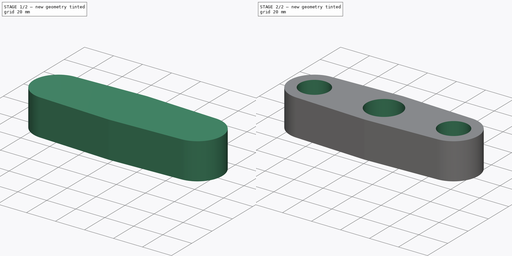
[diagram: build sequence overview — one tinted view per stage of 2, left to right]
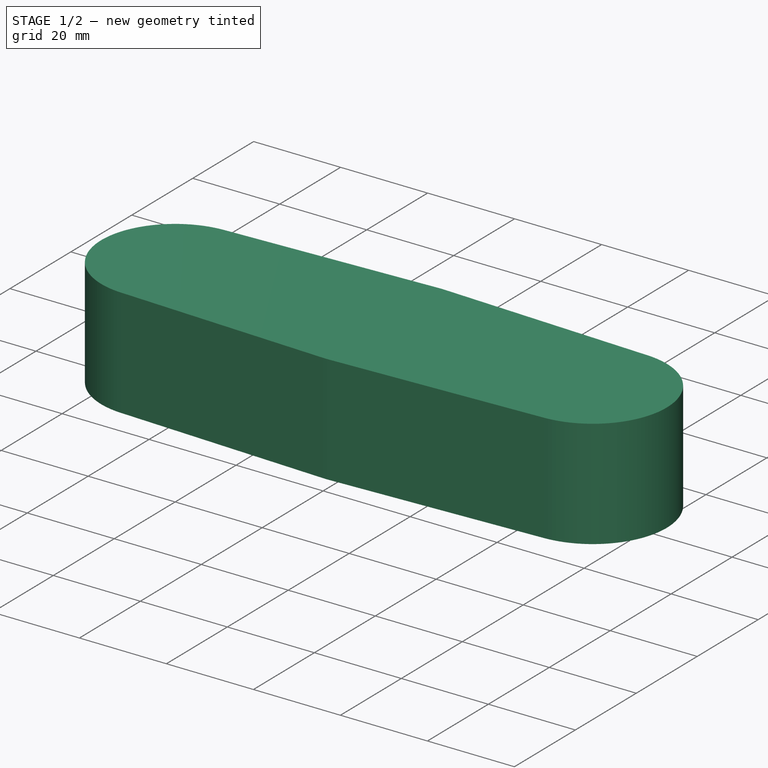
[diagram: stage 1 of 2 — iso view after this stage's code; geometry added in this stage tinted green]
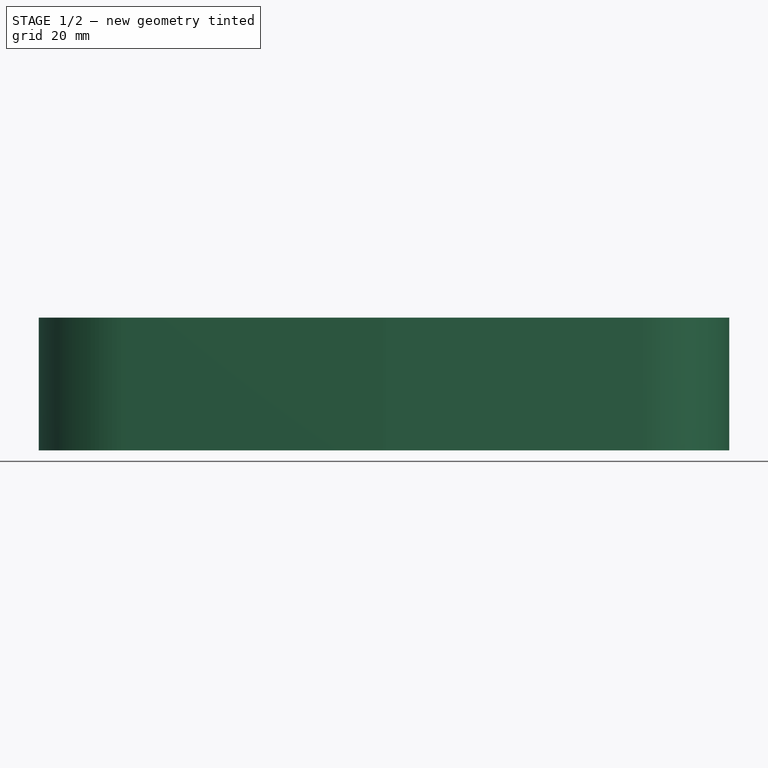
[diagram: stage 1 of 2 — front view after this stage's code; geometry added in this stage tinted green]
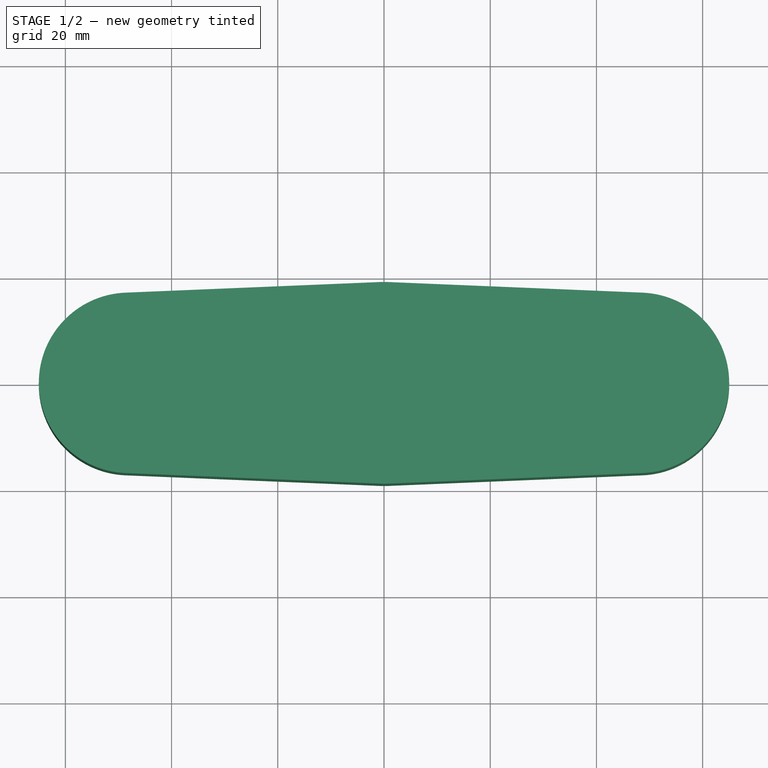
[diagram: stage 1 of 2 — top view after this stage's code; geometry added in this stage tinted green]
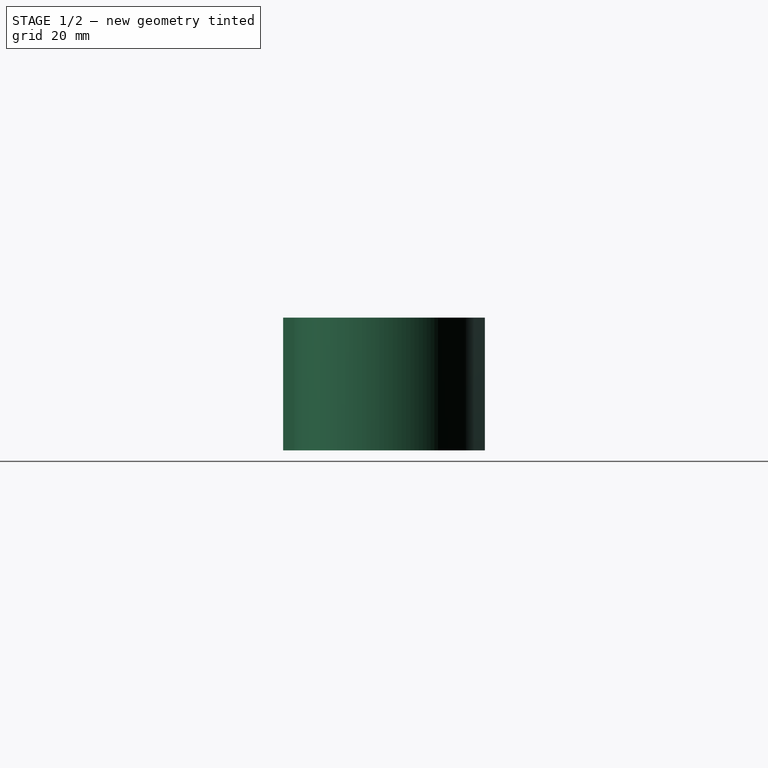
[diagram: stage 1 of 2 — right view after this stage's code; geometry added in this stage tinted green]
FCSTD DOCUMENT  (FreeCAD 0.18R4 (GitTag))
Label: part 4
License: All rights reserved
LicenseURL: http://en.wikipedia.org/wiki/All_rights_reserved
objects: PartDesign::Body×2, Sketcher::SketchObject×2, PartDesign::Pad×1, PartDesign::Pocket×1
note: 8 computed .brp shape members not serialized (recipe doc carries the construction recipe); baked Part::Feature solids carry a one-line shape summary decoded from their .brp

FEATURE [PartDesign::Body] Body
  Origin = -> Origin
FEATURE [Sketcher::SketchObject] Sketch
  MapMode = 5
  Support = -> [XY_Plane001]
  sketch-geometry (8):
    g0: ArcOfCircle CenterX=-48 CenterY=0 CenterZ=0 NormalX=0 NormalY=0 NormalZ=1 AngleXU=0 Radius=17 StartAngle=1.61247 EndAngle=4.67071
    g1: ArcOfCircle CenterX=48 CenterY=0 CenterZ=0 NormalX=0 NormalY=0 NormalZ=1 AngleXU=0 Radius=17 StartAngle=4.75407 EndAngle=7.8123
    g2: ArcOfCircle CenterX=0 CenterY=0 CenterZ=0 NormalX=0 NormalY=0 NormalZ=1 AngleXU=0 Radius=19 StartAngle=1.52912 EndAngle=1.61248
    g3: ArcOfCircle CenterX=0 CenterY=0 CenterZ=0 NormalX=0 NormalY=0 NormalZ=1 AngleXU=0 Radius=19 StartAngle=4.67071 EndAngle=4.75407
    g4: LineSegment StartX=-48.7083 StartY=16.9852 StartZ=0 EndX=-0.791667 EndY=18.9835 EndZ=0
    g5: LineSegment StartX=-48.7083 StartY=-16.9852 StartZ=0 EndX=-0.791666 EndY=-18.9835 EndZ=0
    g6: LineSegment StartX=0.791666 StartY=18.9835 StartZ=0 EndX=48.7083 EndY=16.9852 EndZ=0
    g7: LineSegment StartX=0.791666 StartY=-18.9835 StartZ=0 EndX=48.7083 EndY=-16.9852 EndZ=0
  constraints (26):
    c: DistanceY(g-1,g1) = 0
    c: DistanceY(g-1,g0) = 0
    c: DistanceX(g0,g-1) = 48
    c: DistanceX(g-1,g1) = 48
    c: Radius(g1) = 17
    c: Radius(g0) = 17
    c: Coincident(g2,g-1)
    c: Coincident(g3,g2)
    c: Radius(g2) = 19
    c: Radius(g3) = 19
    c: Coincident(g2,g4)
    c: Coincident(g4,g0)
    c: Coincident(g6,g2)
    c: Coincident(g6,g1)
    c: Coincident(g7,g1)
    c: Coincident(g7,g3)
    c: Coincident(g3,g5)
    c: Coincident(g5,g0)
    c: Tangent(g2,g6)
    c: Tangent(g2,g4)
    c: Tangent(g3,g5)
    c: Tangent(g3,g7)
    c: Tangent(g6,g1)
    c: Tangent(g7,g1)
    c: Tangent(g5,g0)
    c: Tangent(g4,g0)
FEATURE [PartDesign::Pad] Pad
  Length = 25
  Length2 = 100
  Profile = -> Sketch
  Type = 0
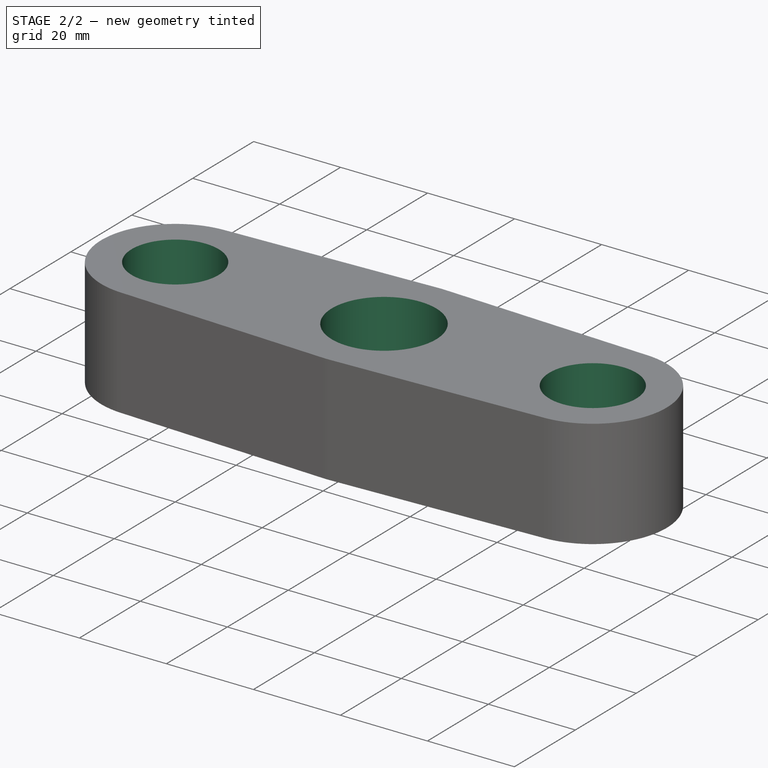
[diagram: stage 2 of 2 — iso view after this stage's code; geometry added in this stage tinted green]
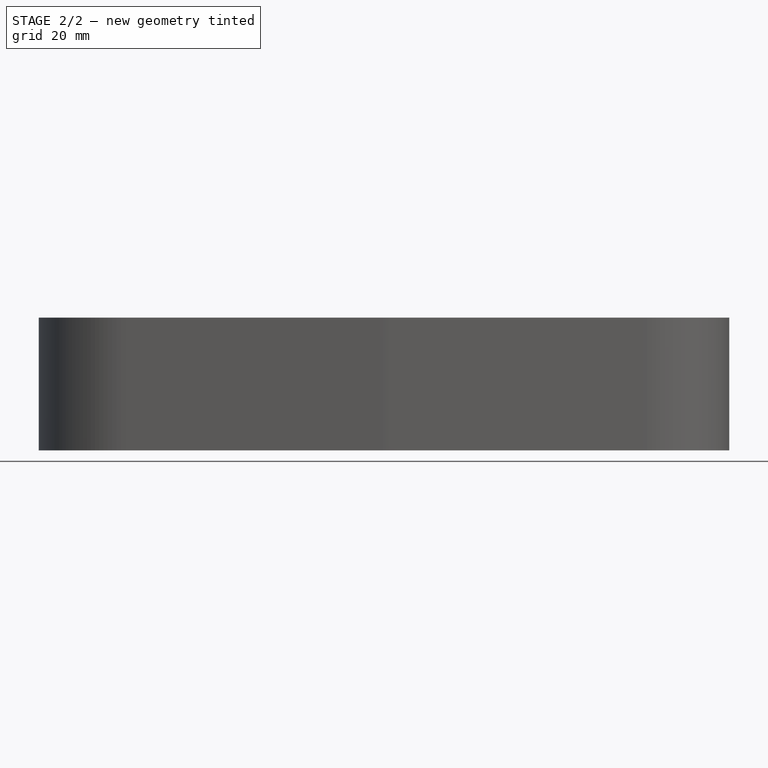
[diagram: stage 2 of 2 — front view after this stage's code; geometry added in this stage tinted green]
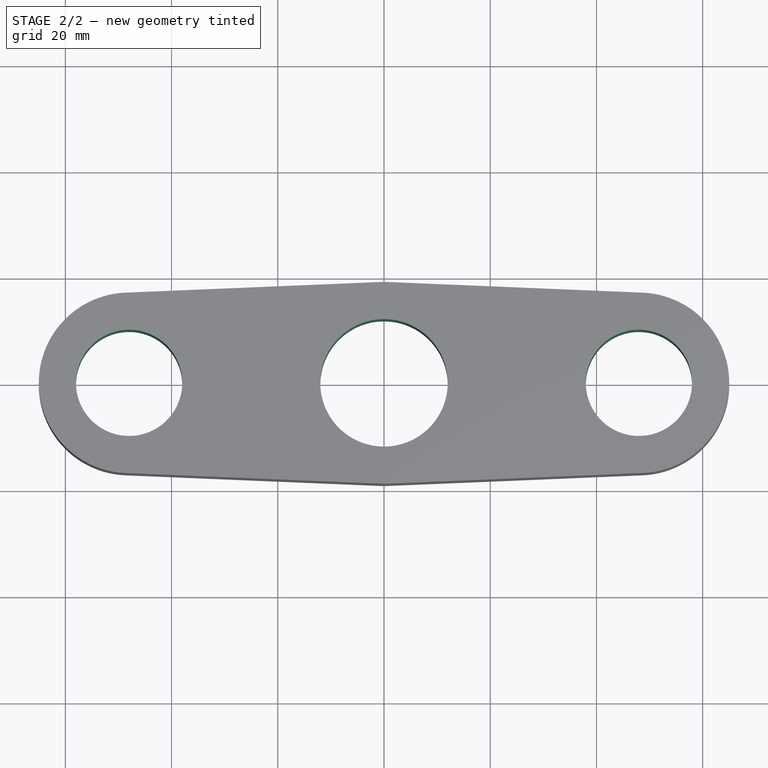
[diagram: stage 2 of 2 — top view after this stage's code; geometry added in this stage tinted green]
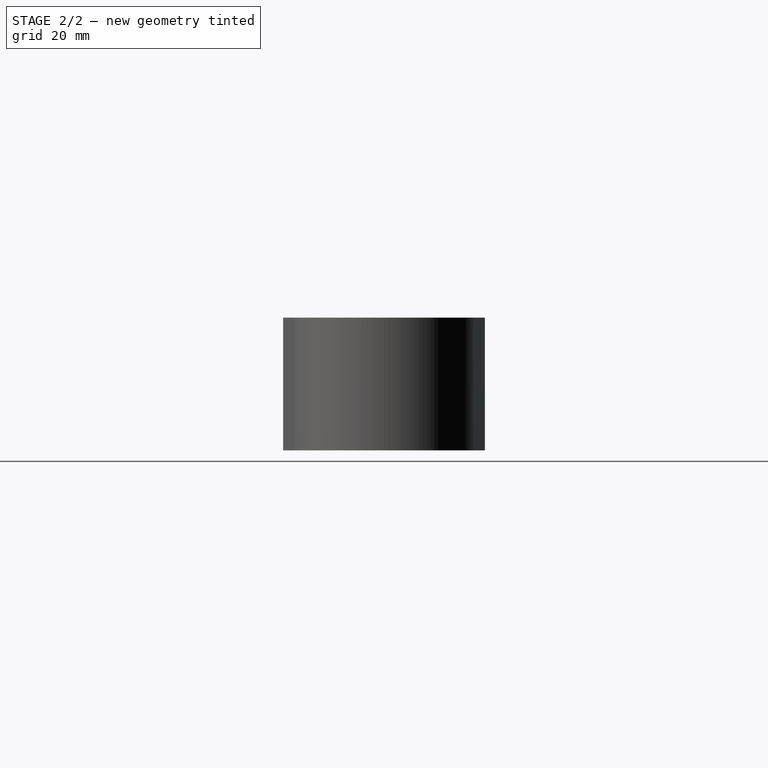
[diagram: stage 2 of 2 — right view after this stage's code; geometry added in this stage tinted green]
FEATURE [Sketcher::SketchObject] Sketch001
  MapMode = 5
  Placement = pos=(0,0,25) rot=(0,0,1;0rad)
  Support = -> [Pad]
  sketch-geometry (3):
    g0: Circle CenterX=0 CenterY=0 CenterZ=0 NormalX=0 NormalY=0 NormalZ=1 AngleXU=0 Radius=12
    g1: Circle CenterX=48 CenterY=0 CenterZ=0 NormalX=0 NormalY=0 NormalZ=1 AngleXU=0 Radius=10
    g2: Circle CenterX=-48 CenterY=0 CenterZ=0 NormalX=0 NormalY=0 NormalZ=1 AngleXU=0 Radius=10
  constraints (8):
    c: Coincident(g0,g-1)
    c: Radius(g0) = 12
    c: Radius(g1) = 10
    c: Radius(g2) = 10
    c: DistanceY(g1,g0) = 0
    c: DistanceY(g2,g0) = 0
    c: DistanceX(g2,g0) = 48
    c: DistanceX(g0,g1) = 48
FEATURE [PartDesign::Pocket] Pocket
  BaseFeature = -> Pad
  Length = 25
  Length2 = 100
  Profile = -> Sketch001
  Type = 0
FEATURE [PartDesign::Body] Body001
  Group = -> [Sketch,Pad,Sketch001,Pocket]
  Origin = -> Origin001
  Tip = -> Pocket
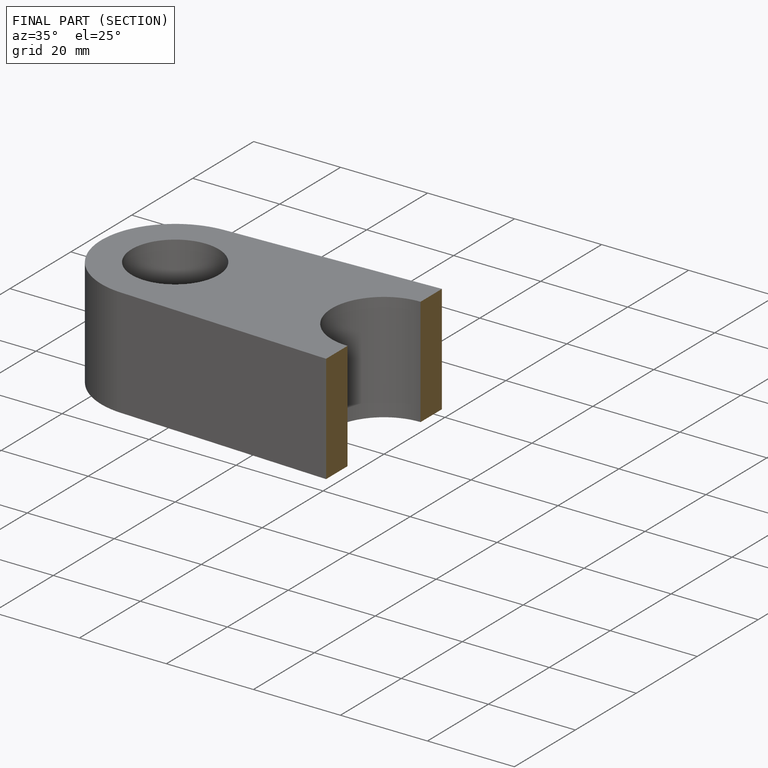
[diagram: finished part — half-section view (interior)]
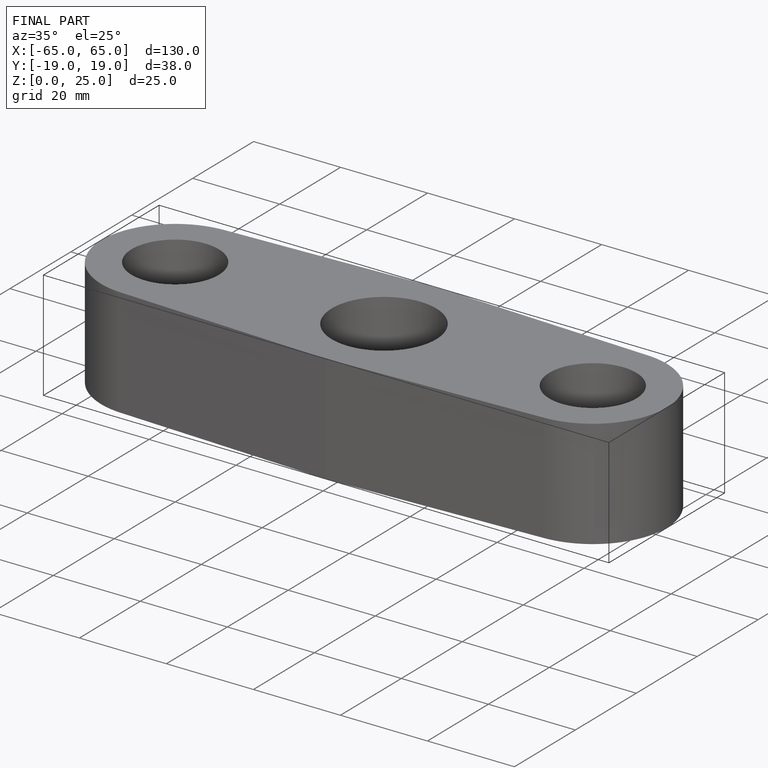
[diagram: finished part — iso view with bounding-box wireframe]
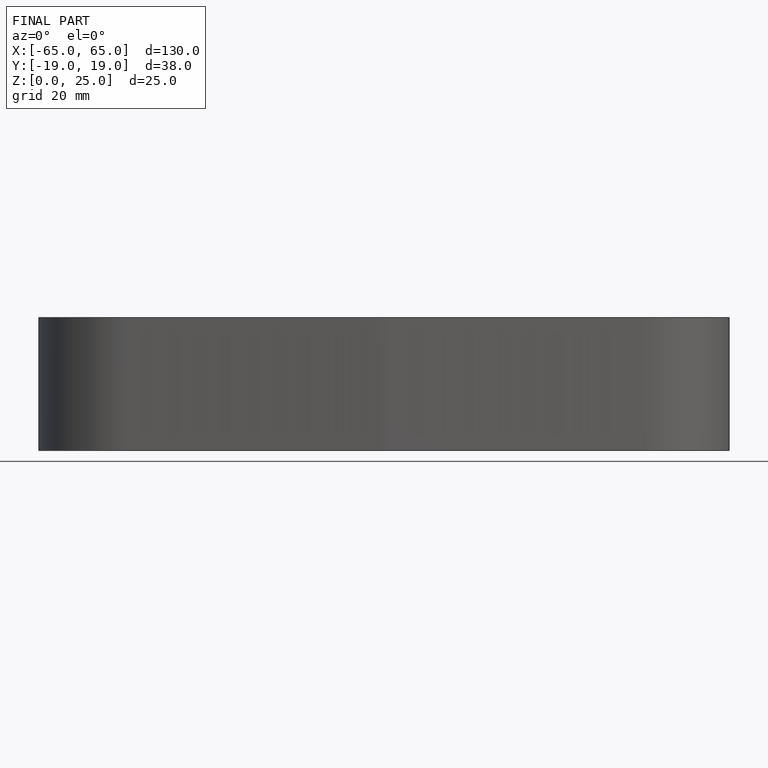
[diagram: finished part — front view with bounding-box wireframe]
